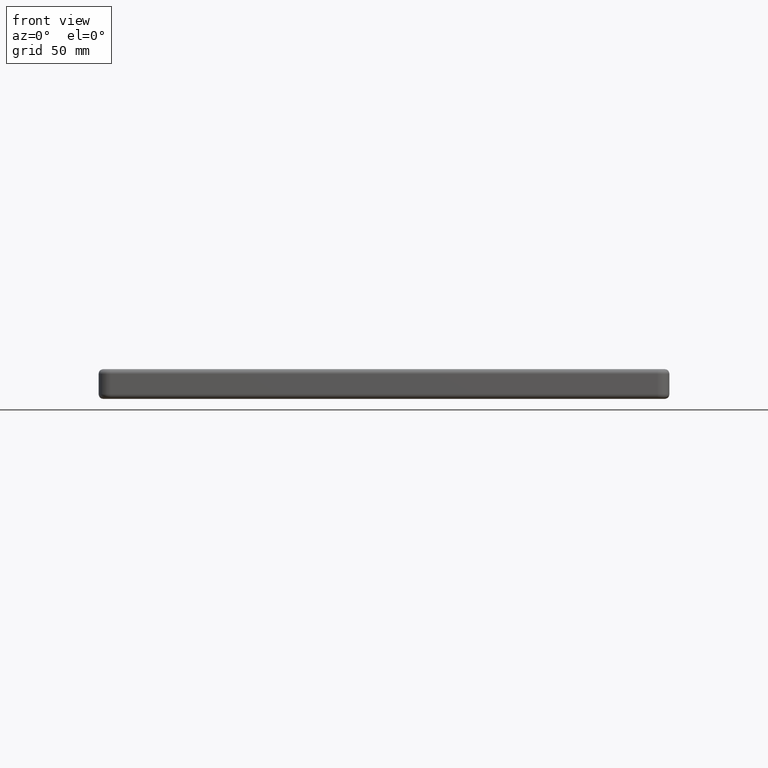
[diagram: clean part render]
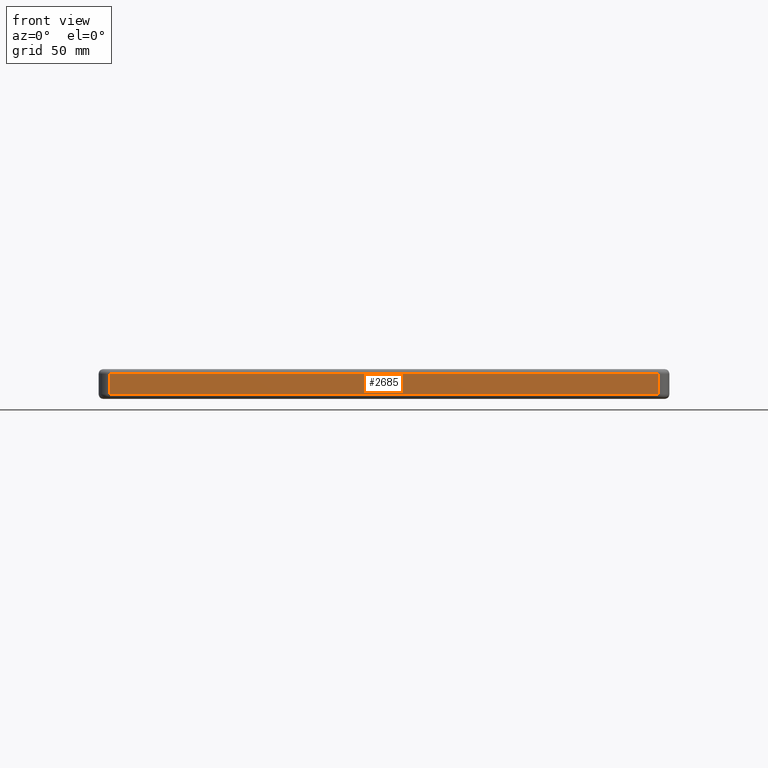
[diagram: same view with one face highlighted and labeled with its STEP entity id]
A machine part, front view. The second image highlights one B-rep face of the part: STEP entity #2685.
In plain terms, the highlighted planar face has unit normal (-0, -1, 0).
Its self-contained STEP definition (entity closure, byte-faithful):
#413 = DIRECTION ( 'NONE',  ( -1.000000000000000000, 1.156482317317870492E-16, -0.000000000000000000 ) ) ;
#448 = ORIENTED_EDGE ( 'NONE', *, *, #1125, .T. ) ;
#465 = DIRECTION ( 'NONE',  ( 0.000000000000000000, 0.000000000000000000, 1.000000000000000000 ) ) ;
#765 = VERTEX_POINT ( 'NONE', #1489 ) ;
#870 = FACE_OUTER_BOUND ( 'NONE', #4363, .T. ) ;
#1125 = EDGE_CURVE ( 'NONE', #4219, #1630, #5831, .T. ) ;
#1279 = ORIENTED_EDGE ( 'NONE', *, *, #2855, .T. ) ;
#1333 = DIRECTION ( 'NONE',  ( 1.000000000000000000, -1.156482317317870492E-16, 0.000000000000000000 ) ) ;
#1353 = LINE ( 'NONE', #4721, #4674 ) ;
#1489 = CARTESIAN_POINT ( 'NONE',  ( 120.0000000000001137, -100.0000000000000284, -11.00000000000000000 ) ) ;
#1630 = VERTEX_POINT ( 'NONE', #1956 ) ;
#1713 = LINE ( 'NONE', #3492, #3268 ) ;
#1720 = VECTOR ( 'NONE', #465, 1000.000000000000000 ) ;
#1956 = CARTESIAN_POINT ( 'NONE',  ( -120.0000000000001137, -100.0000000000000000, -2.000000000000001776 ) ) ;
#2095 = ORIENTED_EDGE ( 'NONE', *, *, #3445, .T. ) ;
#2685 = ADVANCED_FACE ( 'NONE', ( #870 ), #2864, .T. ) ;
#2855 = EDGE_CURVE ( 'NONE', #5713, #765, #1353, .T. ) ;
#2864 = PLANE ( 'NONE',  #4571 ) ;
#2909 = LINE ( 'NONE', #4868, #1720 ) ;
#3268 = VECTOR ( 'NONE', #3520, 1000.000000000000000 ) ;
#3445 = EDGE_CURVE ( 'NONE', #765, #4219, #2909, .T. ) ;
#3492 = CARTESIAN_POINT ( 'NONE',  ( -120.0000000000001137, -100.0000000000000000, -13.00000000000000000 ) ) ;
#3520 = DIRECTION ( 'NONE',  ( 0.000000000000000000, 0.000000000000000000, 1.000000000000000000 ) ) ;
#4063 = EDGE_CURVE ( 'NONE', #5713, #1630, #1713, .T. ) ;
#4177 = DIRECTION ( 'NONE',  ( 1.000000000000000000, -1.156482317317870492E-16, 0.000000000000000000 ) ) ;
#4212 = CARTESIAN_POINT ( 'NONE',  ( -120.0000000000001137, -100.0000000000000000, -13.00000000000000000 ) ) ;
#4219 = VERTEX_POINT ( 'NONE', #5170 ) ;
#4363 = EDGE_LOOP ( 'NONE', ( #5939, #1279, #2095, #448 ) ) ;
#4571 = AXIS2_PLACEMENT_3D ( 'NONE', #4212, #5720, #1333 ) ;
#4674 = VECTOR ( 'NONE', #4177, 1000.000000000000000 ) ;
#4721 = CARTESIAN_POINT ( 'NONE',  ( -120.0000000000001137, -100.0000000000000000, -11.00000000000000000 ) ) ;
#4868 = CARTESIAN_POINT ( 'NONE',  ( 120.0000000000001137, -100.0000000000000284, -13.00000000000000000 ) ) ;
#5170 = CARTESIAN_POINT ( 'NONE',  ( 120.0000000000001137, -100.0000000000000284, -2.000000000000003553 ) ) ;
#5362 = CARTESIAN_POINT ( 'NONE',  ( -120.0000000000001137, -100.0000000000000000, -2.000000000000000000 ) ) ;
#5669 = VECTOR ( 'NONE', #413, 1000.000000000000000 ) ;
#5713 = VERTEX_POINT ( 'NONE', #5808 ) ;
#5720 = DIRECTION ( 'NONE',  ( -1.156482317317870492E-16, -1.000000000000000000, 0.000000000000000000 ) ) ;
#5808 = CARTESIAN_POINT ( 'NONE',  ( -120.0000000000001137, -100.0000000000000000, -11.00000000000000000 ) ) ;
#5831 = LINE ( 'NONE', #5362, #5669 ) ;
#5939 = ORIENTED_EDGE ( 'NONE', *, *, #4063, .F. ) ;